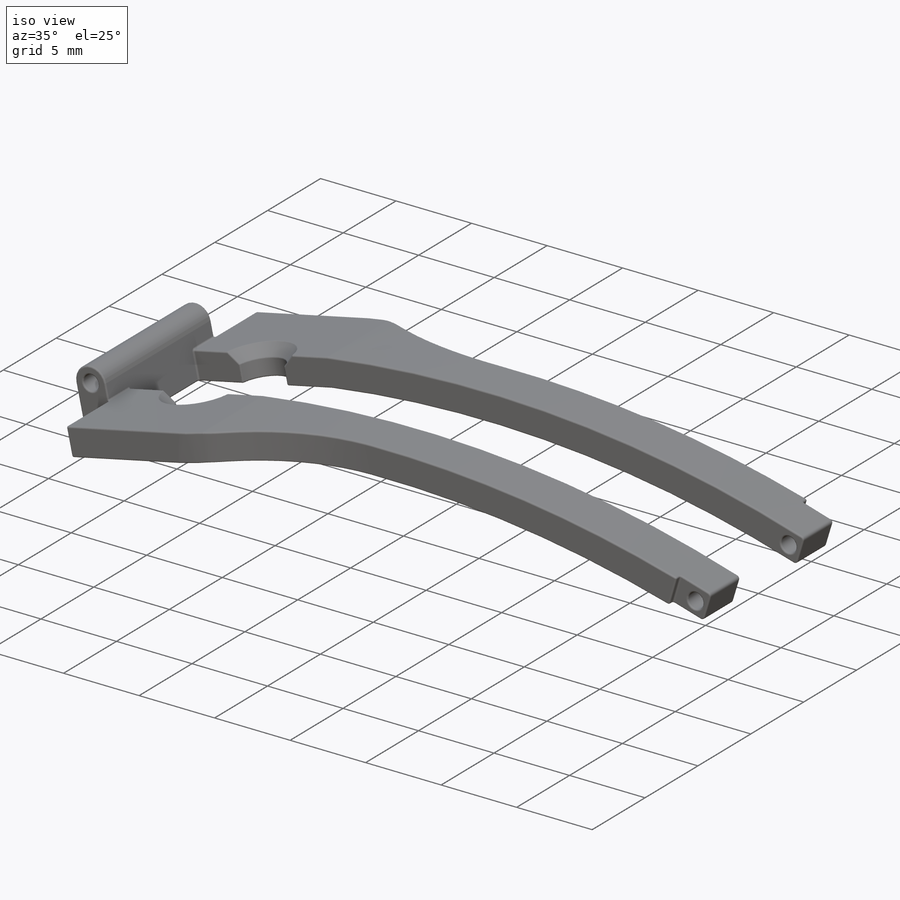
[diagram: iso view]
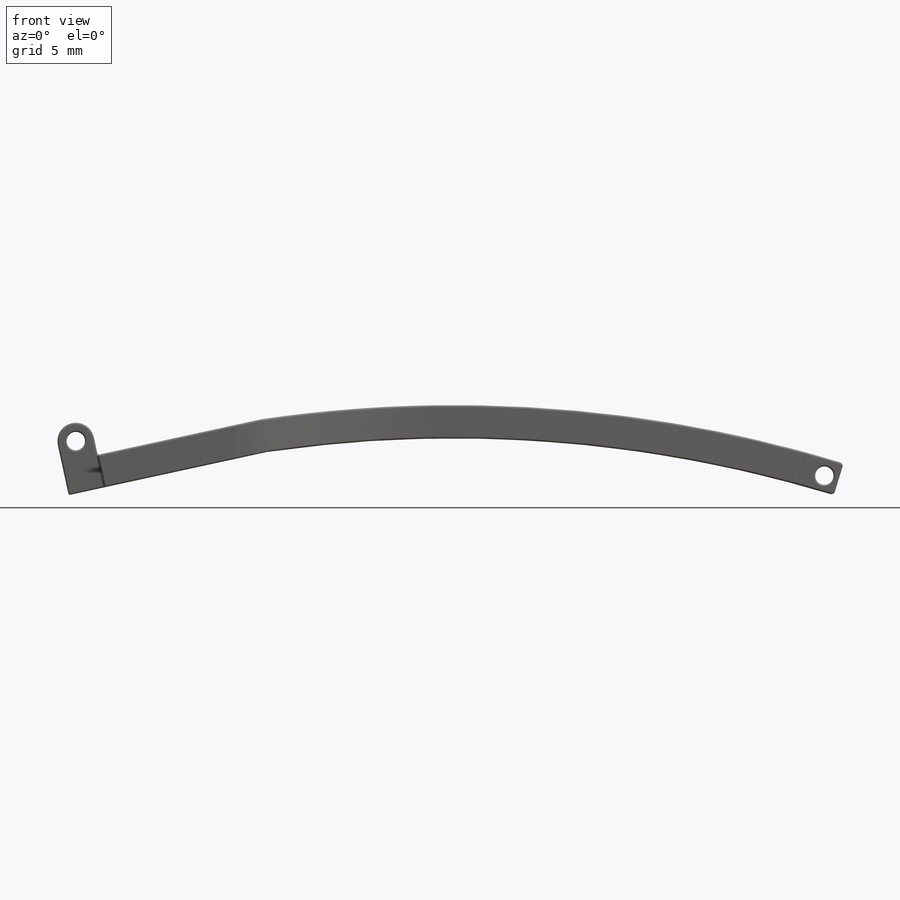
[diagram: front view]
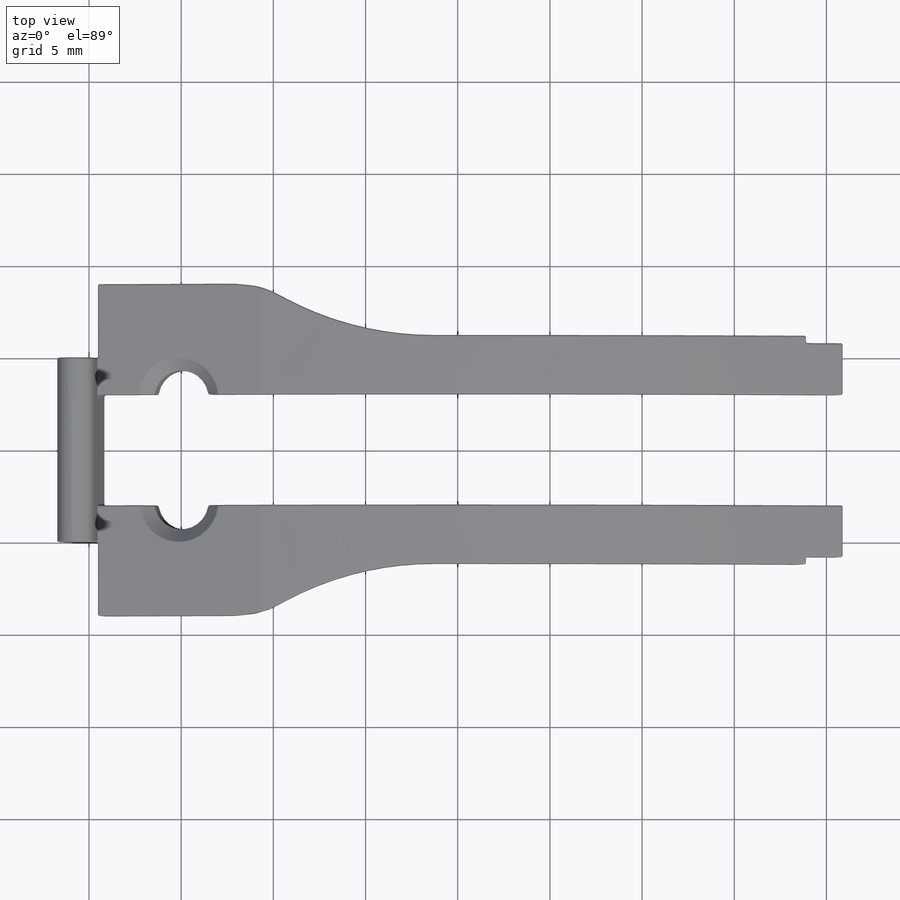
[diagram: top view]
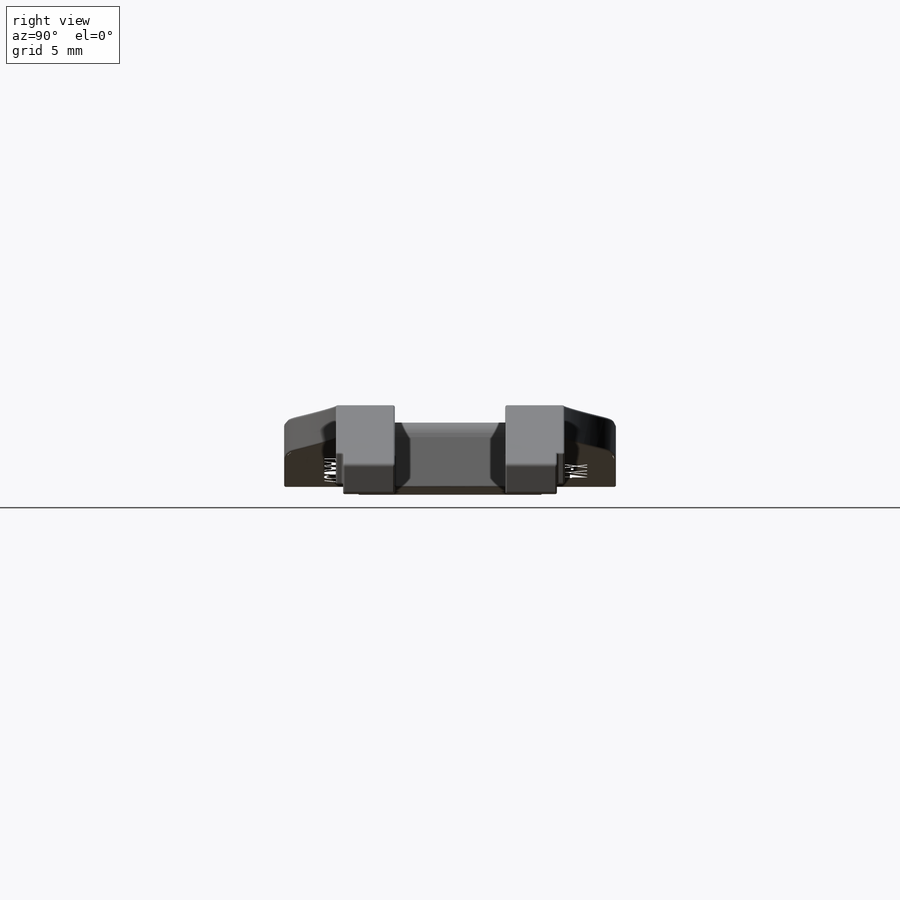
[diagram: right view]
SOLIDWORKS PART (.sldprt)
format: sldprt  version: not decoded by parser v0  size: 2,470,912 bytes
history: native  units: mm
features: sketch x13, cut_extrude x11, fillet x7, extrude x2, material x1, chamfer x1 (+11 scaffold rows collapsed)
feature tree (46):
  scaffold x11  (default folders/planes/origin — collapsed)
  material  "Material <not specified>"
  sketch  "Sketch1"  dims[D1=11.0mm D2=2.0mm]
  extrude  "Boss-Extrude1"  Depth=18mm
  sketch  "Sketch2"  dims[D1=0.0mm]
  cut_extrude  "Cut-Extrude1"  Depth=1mm
  fillet  "Fillet1"  Radius=1mm
  sketch  "Sketch3"  dims[D1=1.0mm D2=1.0mm D3=0.8mm]
  cut_extrude  "Cut-Extrude2"  Depth=21mm
  fillet  "Fillet2"  Radius=0.2mm
  sketch  "Sketch4"
  cut_extrude  "Cut-Extrude3"  Depth=4mm
  sketch  "Sketch5"  dims[D1=0.0mm]
  cut_extrude  "Cut-Extrude4"  Depth=4mm
  sketch  "Sketch6"  dims[D1=6.0mm D2=3.0mm]
  cut_extrude  "Cut-Extrude5"  Depth=64mm
  sketch  "Sketch7"
  extrude  "Boss-Extrude2"  Depth=9mm
  sketch  "Sketch8"  dims[D1=1.5mm D2=2.8mm D3=2.8mm D4=3.0mm]
  cut_extrude  "Cut-Extrude6"  Depth=9mm
  chamfer  "Chamfer1"  Distance=0.7mm Angle=45deg
  sketch  "Sketch9"  dims[D1=3.2mm D2=3.2mm]
  cut_extrude  "Cut-Extrude7"  Depth=59mm
  fillet  "Fillet3"  Radius=17mm
  fillet  "Fillet4"  Radius=5mm
  sketch  "Sketch10"
  cut_extrude  "Cut-Extrude8"  Depth=0.4mm
  sketch  "Sketch11"
  cut_extrude  "Cut-Extrude9"  Depth=0.4mm
  fillet  "Fillet5"  Radius=0.1mm
  sketch  "Sketch12"
  cut_extrude  "Cut-Extrude10"  Depth=0.1mm
  fillet  "Fillet7"  Radius=0.02mm
  fillet  "Fillet8"  Radius=0.02mm
  sketch  "Sketch13"
  cut_extrude  "Cut-Extrude11"  Depth=0.03mm
decode coverage: 28 of 34 modeling features carry decoded parameters
note: suppression state not decoded; provenance and decode notes live in map.json
